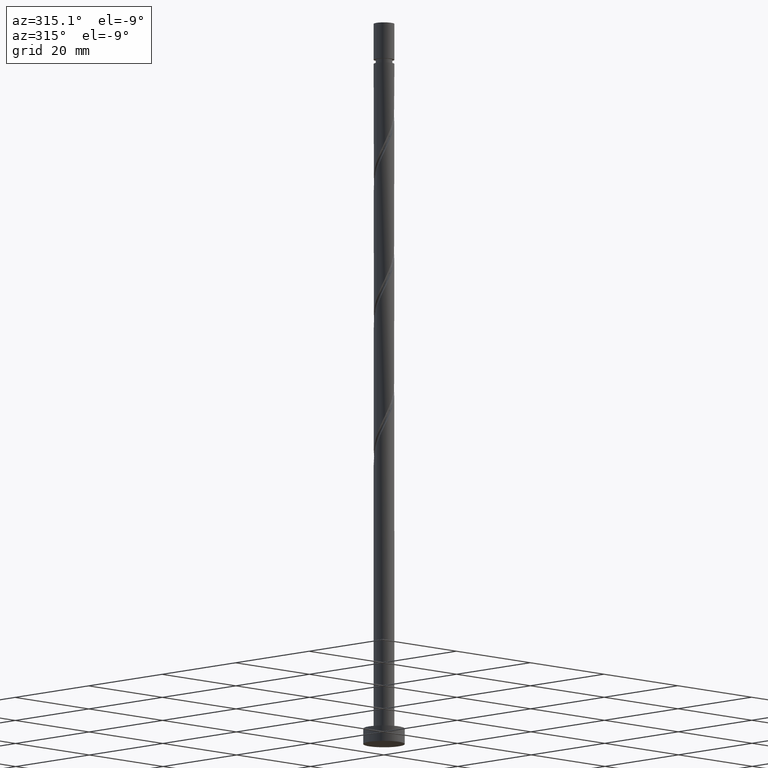
[diagram: clean part render]
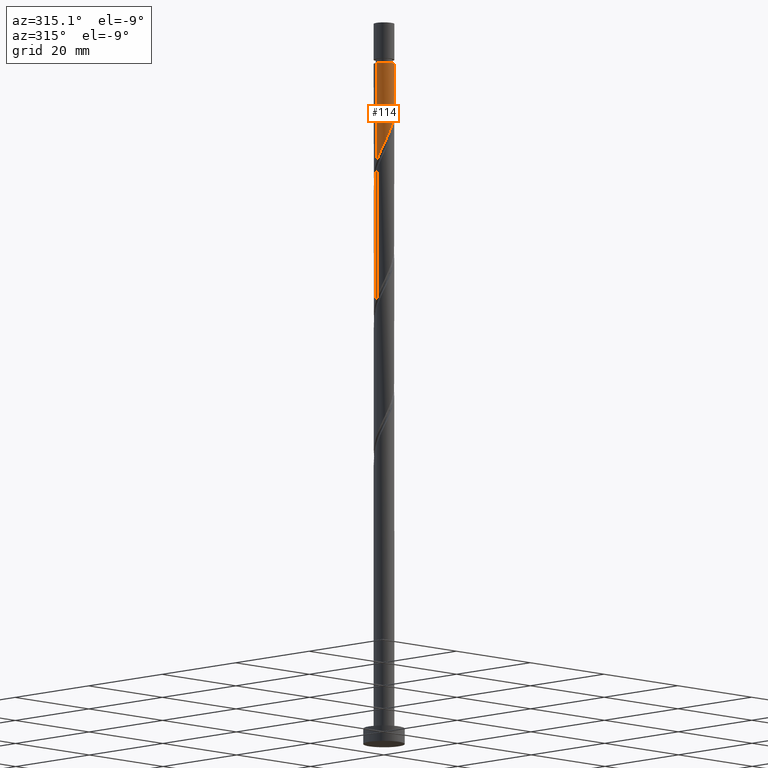
[diagram: same view with one face highlighted and labeled with its STEP entity id]
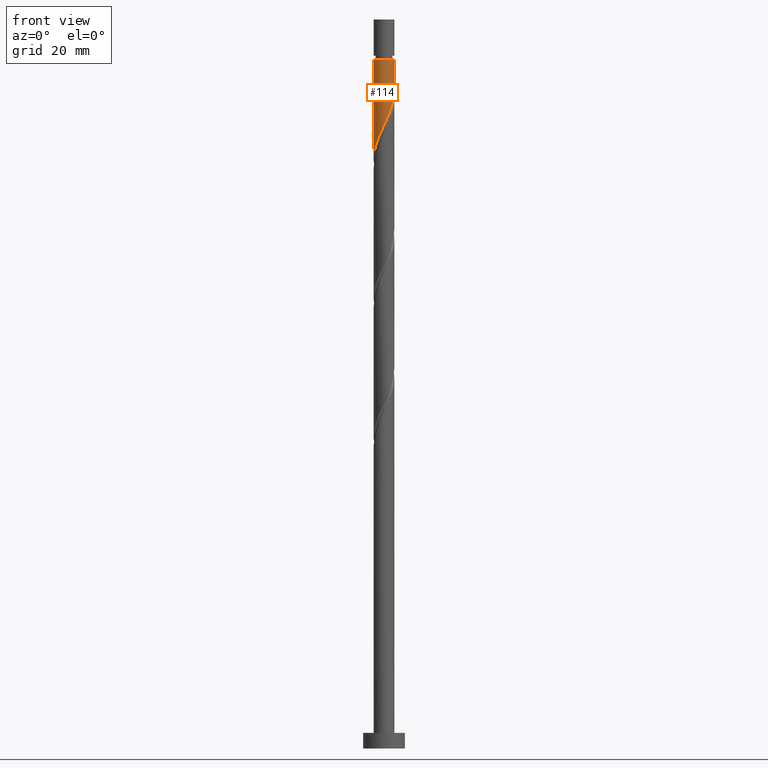
[diagram: same view with one face highlighted and labeled with its STEP entity id]
A machine part, auxiliary view. The second image highlights one B-rep face of the part: STEP entity #114.
A second angle (front view) of the same face is appended — the face is thin or edge-on in the first view.
In plain terms, the highlighted cylindrical surface (edge-blend (fillet) strip) has radius 2 mm, axis along (-0, -0, -1).
Its self-contained STEP definition (entity closure, byte-faithful):
#14 =( BOUNDED_CURVE ( )  B_SPLINE_CURVE ( 2, ( #1523, #1031, #623, #1293, #112, #141, #753, #1533, #1515, #370, #1400, #880, #256, #764, #682, #1589, #1600, #1230, #974, #333, #302, #1484, #1355, #1101, #200 ),
 .UNSPECIFIED., .F., .T. ) 
 B_SPLINE_CURVE_WITH_KNOTS ( ( 3, 2, 2, 2, 2, 2, 2, 2, 2, 2, 2, 2, 3 ),
 ( 0.3045252162417512731, 0.3068181818181818232, 0.3181818181818181768, 0.3295454545454545303, 0.3409090909090908839, 0.3522727272727272929, 0.3636363636363636465, 0.3750000000000000000, 0.3863636363636363535, 0.3977272727272727071, 0.4090909090909091161, 0.4204545454545454697, 0.4295252162417514952 ),
 .UNSPECIFIED. ) 
 CURVE ( )  GEOMETRIC_REPRESENTATION_ITEM ( )  RATIONAL_B_SPLINE_CURVE ( ( 0.9061101570135571270, 0.9072237824201392353, 0.9090909090909168322, 0.8998376744372191816, 0.9090909090909168322, 0.8998376744372191816, 0.9090909090909168322, 0.8998376744372191816, 0.9090909090909168322, 0.8998376744372191816, 0.9090909090909168322, 0.8998376744372191816, 0.9090909090909168322, 0.8998376744372191816, 0.9090909090909168322, 0.8998376744372191816, 0.9090909090909168322, 0.8998376744372191816, 0.9090909090909168322, 0.8998376744372191816, 0.9090909090909168322, 0.8998376744372191816, 0.9090909090909168322, 0.9017048011079965564, 0.9061101570135573491 ) ) 
 REPRESENTATION_ITEM ( '' )  );
#93 = EDGE_CURVE ( 'NONE', #931, #593, #14, .T. ) ;
#112 = CARTESIAN_POINT ( 'NONE',  ( 1.883409435608316418, -0.6728810428757551199, 124.9513903065019775 ) ) ;
#114 = ADVANCED_FACE ( 'NONE', ( #1203 ), #208, .T. ) ;
#141 = CARTESIAN_POINT ( 'NONE',  ( 1.786663747202082098, -0.9436744384215545178, 124.3453297004413827 ) ) ;
#200 = CARTESIAN_POINT ( 'NONE',  ( -2.000000000000000444, 2.288393567634959354E-15, 113.0735720585301181 ) ) ;
#208 = CYLINDRICAL_SURFACE ( 'NONE', #704, 2.000000000000000000 ) ;
#221 = CARTESIAN_POINT ( 'NONE',  ( -2.000000000000000000, 0.000000000000000000, 140.0000000000000000 ) ) ;
#256 = CARTESIAN_POINT ( 'NONE',  ( 0.1703224295138014710, -1.992734370156874713, 120.1029054580171476 ) ) ;
#302 = CARTESIAN_POINT ( 'NONE',  ( -1.741900447066338620, -0.9827425057002934228, 115.2544206095322750 ) ) ;
#333 = CARTESIAN_POINT ( 'NONE',  ( -1.600603406160405751, -1.233189980288572851, 115.8604812155928983 ) ) ;
#358 = DIRECTION ( 'NONE',  ( -0.000000000000000000, -0.000000000000000000, -1.000000000000000000 ) ) ;
#362 = VECTOR ( 'NONE', #1219, 1000.000000000000000 ) ;
#370 = CARTESIAN_POINT ( 'NONE',  ( 0.9928482695149667414, -1.759812803970228989, 121.9210872761989606 ) ) ;
#472 = ORIENTED_EDGE ( 'NONE', *, *, #93, .F. ) ;
#499 = CARTESIAN_POINT ( 'NONE',  ( 2.000000000000000000, 2.449293598294706414E-16, 140.0000000000000000 ) ) ;
#509 = ORIENTED_EDGE ( 'NONE', *, *, #1058, .T. ) ;
#593 = VERTEX_POINT ( 'NONE', #788 ) ;
#623 = CARTESIAN_POINT ( 'NONE',  ( 1.996690616564940512, -0.1150068768444777595, 126.1635115186231531 ) ) ;
#656 = DIRECTION ( 'NONE',  ( -0.000000000000000000, -0.000000000000000000, -1.000000000000000000 ) ) ;
#673 = VERTEX_POINT ( 'NONE', #1295 ) ;
#682 = CARTESIAN_POINT ( 'NONE',  ( -0.3979949748426488410, -1.960000000000000409, 118.8907842458959010 ) ) ;
#704 = AXIS2_PLACEMENT_3D ( 'NONE', #1606, #1083, #833 ) ;
#707 = CIRCLE ( 'NONE', #1034, 1.999999999999996669 ) ;
#724 = CARTESIAN_POINT ( 'NONE',  ( -1.999999999999996669, 0.000000000000000000, 132.2241175792292438 ) ) ;
#738 = ORIENTED_EDGE ( 'NONE', *, *, #1402, .T. ) ;
#753 = CARTESIAN_POINT ( 'NONE',  ( 1.617545623245912001, -1.176242388590887478, 123.7392690943807452 ) ) ;
#764 = CARTESIAN_POINT ( 'NONE',  ( -0.1161895186125015411, -2.017223038501448684, 119.4968448519565243 ) ) ;
#788 = CARTESIAN_POINT ( 'NONE',  ( -2.000000000000000444, 2.288393567634959354E-15, 113.0735720585301181 ) ) ;
#833 = DIRECTION ( 'NONE',  ( -1.000000000000000000, 0.000000000000000000, 0.000000000000000000 ) ) ;
#880 = CARTESIAN_POINT ( 'NONE',  ( 0.4568343776401054823, -1.968245701812301407, 120.7089660640777140 ) ) ;
#901 = DIRECTION ( 'NONE',  ( -1.000000000000000000, 0.000000000000000000, 0.000000000000000000 ) ) ;
#931 = VERTEX_POINT ( 'NONE', #1619 ) ;
#974 = CARTESIAN_POINT ( 'NONE',  ( -1.394470680848407085, -1.433684595806964834, 116.4665418216534931 ) ) ;
#1007 = VERTEX_POINT ( 'NONE', #724 ) ;
#1010 = LINE ( 'NONE', #499, #1169 ) ;
#1031 = CARTESIAN_POINT ( 'NONE',  ( 2.000000000000000888, -0.05755105304764396995, 126.2848073871452357 ) ) ;
#1034 = AXIS2_PLACEMENT_3D ( 'NONE', #1170, #656, #901 ) ;
#1058 = EDGE_CURVE ( 'NONE', #1007, #593, #1482, .T. ) ;
#1083 = DIRECTION ( 'NONE',  ( -0.000000000000000000, -0.000000000000000000, -1.000000000000000000 ) ) ;
#1101 = CARTESIAN_POINT ( 'NONE',  ( -2.000000000000001332, -0.2290578547702415424, 113.5595320115014317 ) ) ;
#1122 = ORIENTED_EDGE ( 'NONE', *, *, #1647, .F. ) ;
#1169 = VECTOR ( 'NONE', #358, 1000.000000000000000 ) ;
#1170 = CARTESIAN_POINT ( 'NONE',  ( 0.000000000000000000, 0.000000000000000000, 132.2241175792292438 ) ) ;
#1203 = FACE_OUTER_BOUND ( 'NONE', #1320, .T. ) ;
#1219 = DIRECTION ( 'NONE',  ( -0.000000000000000000, -0.000000000000000000, -1.000000000000000000 ) ) ;
#1230 = CARTESIAN_POINT ( 'NONE',  ( -1.188337955536408197, -1.634179211325358816, 117.0726024277140880 ) ) ;
#1293 = CARTESIAN_POINT ( 'NONE',  ( 1.980155124014551626, -0.4020876473299559994, 125.5574509125626008 ) ) ;
#1295 = CARTESIAN_POINT ( 'NONE',  ( 1.999999999999996669, 2.449293598294703949E-16, 132.2241175792292438 ) ) ;
#1320 = EDGE_LOOP ( 'NONE', ( #1122, #738, #509, #472 ) ) ;
#1355 = CARTESIAN_POINT ( 'NONE',  ( -1.948211798543800111, -0.4521844623765073345, 114.0422993974110568 ) ) ;
#1400 = CARTESIAN_POINT ( 'NONE',  ( 0.7248413235775359453, -1.864029252891264754, 121.3150266701383373 ) ) ;
#1402 = EDGE_CURVE ( 'NONE', #673, #1007, #707, .T. ) ;
#1482 = LINE ( 'NONE', #221, #362 ) ;
#1484 = CARTESIAN_POINT ( 'NONE',  ( -1.883197487972272155, -0.7322950311120138833, 114.6483600034716943 ) ) ;
#1515 = CARTESIAN_POINT ( 'NONE',  ( 1.220637884402353768, -1.584311571365224269, 122.5271478822595412 ) ) ;
#1523 = CARTESIAN_POINT ( 'NONE',  ( 2.000000000000000444, 1.046977449244752626E-16, 126.4069053918634751 ) ) ;
#1533 = CARTESIAN_POINT ( 'NONE',  ( 1.448427499289741904, -1.408810338760220437, 123.1332084883201645 ) ) ;
#1589 = CARTESIAN_POINT ( 'NONE',  ( -0.6798004310727965294, -1.902776961498552133, 118.2847236398352919 ) ) ;
#1600 = CARTESIAN_POINT ( 'NONE',  ( -0.9340691933046022521, -1.768478086411954919, 117.6786630337746828 ) ) ;
#1606 = CARTESIAN_POINT ( 'NONE',  ( 0.000000000000000000, 0.000000000000000000, 140.0000000000000000 ) ) ;
#1619 = CARTESIAN_POINT ( 'NONE',  ( 2.000000000000000444, 1.046977449244752626E-16, 126.4069053918634751 ) ) ;
#1647 = EDGE_CURVE ( 'NONE', #673, #931, #1010, .T. ) ;